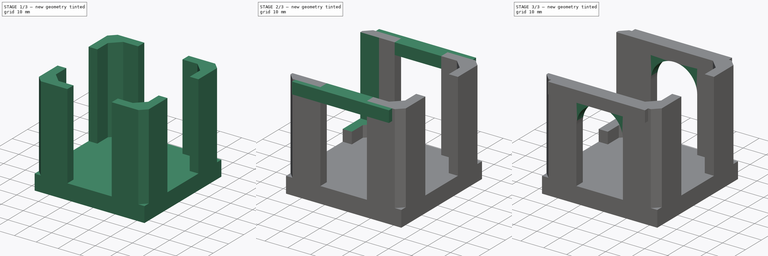
[diagram: build sequence overview — one tinted view per stage of 3, left to right]
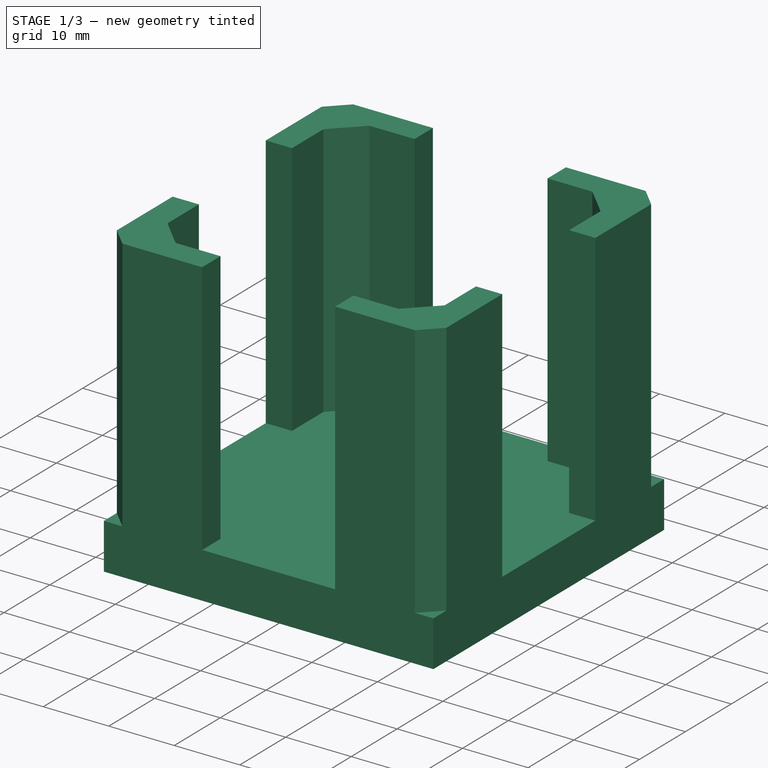
[diagram: stage 1 of 3 — iso view after this stage's code; geometry added in this stage tinted green]
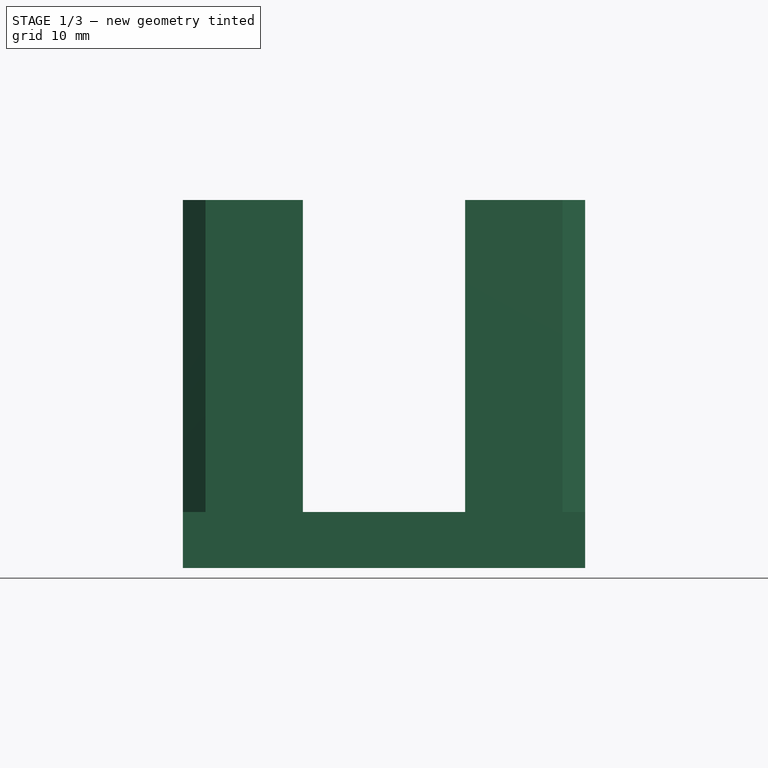
[diagram: stage 1 of 3 — front view after this stage's code; geometry added in this stage tinted green]
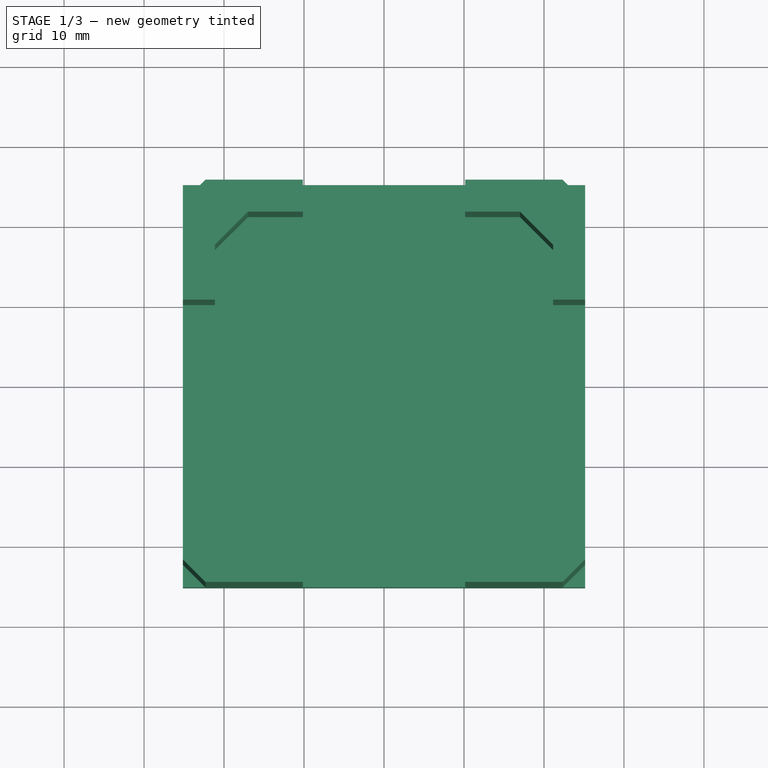
[diagram: stage 1 of 3 — top view after this stage's code; geometry added in this stage tinted green]
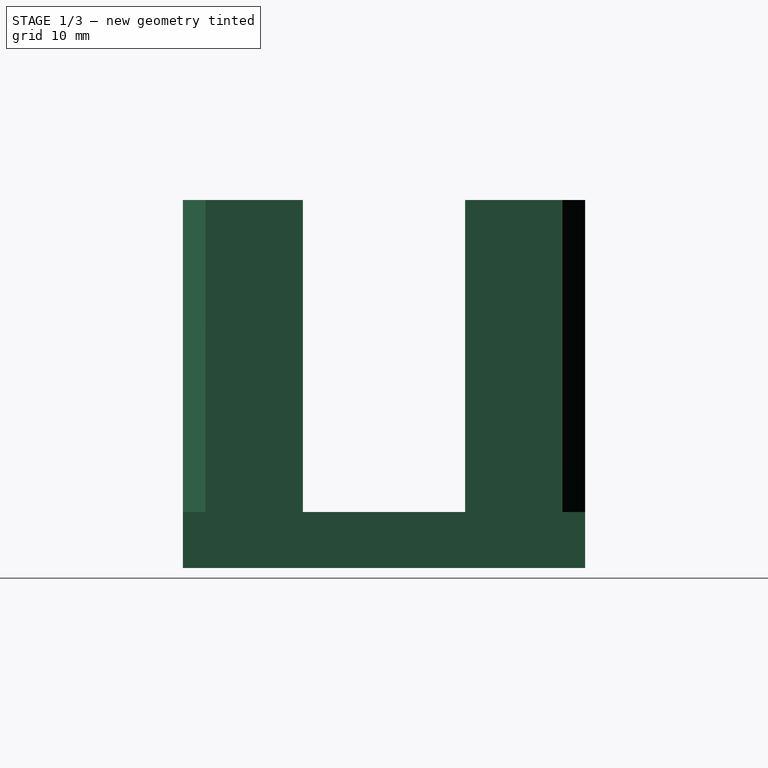
[diagram: stage 1 of 3 — right view after this stage's code; geometry added in this stage tinted green]
FCSTD DOCUMENT  (FreeCAD 0.18R4 (GitTag))
Label: ZStepperStand
License: All rights reserved
LicenseURL: http://en.wikipedia.org/wiki/All_rights_reserved
objects: Sketcher::SketchObject×6, PartDesign::Pad×5, Spreadsheet::Sheet×3, PartDesign::Pocket×1, PartDesign::Body×1
note: 19 computed .brp shape members not serialized (recipe doc carries the construction recipe); baked Part::Feature solids carry a one-line shape summary decoded from their .brp

FEATURE [Spreadsheet::Sheet] Spreadsheet  label="Nema17"
  cells = A1=BodyWidth; B1(BodyWidth)==42.3mm; A2=BodyLength; B2(BodyLength)==42.3mm; A3=BodyHeight34mm; B3(BodyHeight34mm)==34mm; A4=ScrewSeparation; B4(ScrewSeparation)==31mm; A5=DamperSupportHeight; B5(DamperSupportHeight)==2mm; A6=DamperSupportDiameter; B6(DamperSupportDiameter)==22mm; A7=ShaftLength; B7(ShaftLength)==24mm; A8=ShaftDiameter; B8(ShaftDiameter)==5mm; A9=PlugHeight; B9(PlugHeight)==12mm; A10=PlugWidth; B10(PlugWidth)==16mm; A11=PlugLength; B11(PlugLength)==6.5mm; A12=BodyInsideTaper; B12(BodyInsideTaper)==34mm
FEATURE [Spreadsheet::Sheet] Spreadsheet001  label="Nema17-Damper"
  cells = A1=DamperWingSpan; B1(DamperWingSpan)==53.8mm; A2=DamperScrewSeparation; B2(DamperScrewSeparation)==43.8mm; A3=DamperWingUnspan; B3(DamperWingUnspan)==32mm; A4=DamperShaftHoleRadius; B4(DamperShaftHoleRadius)==11mm; A5=DamperShaftHolderHoleRadius; B5(DamperShaftHolderHoleRadius)==8.5mm; A6=DamperAdjacentScrewSeparation; B6(DamperAdjacentScrewSeparation)==31mm; A7=DamperPlatesThickness; B7(DamperPlatesThickness)==1.6mm; A8=DamperPlatesSeparation; B8(DamperPlatesSeparation)==2.7mm; A9=DamperPlatesSeparationOuterDiameter; B9(DamperPlatesSeparationOuterDiameter)==29.5mm; A10=DamperNextHolderHeight; B10(DamperNextHolderHeight)==1mm; A11=DamperNextHolderRadius; B11(DamperNextHolderRadius)==11mm
FEATURE [Sketcher::SketchObject] Sketch
  MapMode = 5
  Support = -> [XY_Plane]
  expr: Constraints[11] = (Nema17.BodyWidth + 2 * ZStepperStand.Margin + 2 * ZStepperStand.WallThickness) / 2
  expr: Constraints[10] = (Nema17.BodyWidth + 2 * ZStepperStand.Margin + 2 * ZStepperStand.WallThickness) / 2
  expr: Constraints[9] = Nema17.BodyLength + 2 * ZStepperStand.Margin + 2 * ZStepperStand.WallThickness
  expr: Constraints[8] = Nema17.BodyWidth + 2 * ZStepperStand.Margin + 2 * ZStepperStand.WallThickness
  sketch-geometry (4):
    g0: LineSegment StartX=-25.15 StartY=25.15 StartZ=0 EndX=25.15 EndY=25.15 EndZ=0
    g1: LineSegment StartX=25.15 StartY=25.15 StartZ=0 EndX=25.15 EndY=-25.15 EndZ=0
    g2: LineSegment StartX=25.15 StartY=-25.15 StartZ=0 EndX=-25.15 EndY=-25.15 EndZ=0
    g3: LineSegment StartX=-25.15 StartY=-25.15 StartZ=0 EndX=-25.15 EndY=25.15 EndZ=0
  constraints (12):
    c: Coincident(g0,g1)
    c: Coincident(g1,g2)
    c: Coincident(g2,g3)
    c: Coincident(g3,g0)
    c: Horizontal(g0)
    c: Horizontal(g2)
    c: Vertical(g1)
    c: Vertical(g3)
    c: DistanceX(g0,g0) = 50.3
    c: DistanceY(g3,g3) = 50.3
    c: DistanceX(g-1,g0) = 25.15
    c: DistanceY(g-1,g0) = 25.15
FEATURE [Spreadsheet::Sheet] Spreadsheet002  label="ZStepperStand"
  cells = A1=WallThickness; B1(WallThickness)==4mm; A2=BaseThickness; B2(BaseThickness)==7mm; A3=Margin; B3(Margin)==0mm; A4=ColumnWidth; B4(ColumnWidth)==15mm; A5=LockStepHeight; B5(LockStepHeight)==5mm; A6=BaseWidth; B6(BaseWidth)==Nema17.BodyWidth + Margin * 2 + WallThickness * 2; A7=ColumnHeight; B7(ColumnHeight)==Nema17.BodyHeight34mm + ZStepperStand.StepperToSupportWood; A8=ZGuideSupportThickness; B8(ZGuideSupportThickness)==5mm; A9=StepperToSupportWood; B9(StepperToSupportWood)==5mm; A10=ColumnsGap; B10(ColumnsGap)==ZStepperStand.BaseWidth - ZStepperStand.ColumnWidth * 2
FEATURE [PartDesign::Pad] Pad  label="Base"
  Length = 7
  Length2 = 100
  Profile = -> Sketch
  Type = 0
  expr: Length = ZStepperStand.BaseThickness
FEATURE [Sketcher::SketchObject] Sketch001
  MapMode = 5
  Placement = pos=(0,0,7) rot=(0,0,1;0rad)
  Support = -> [Pad]
  expr: Constraints[119] = ZStepperStand.ColumnWidth
  expr: Constraints[101] = ZStepperStand.WallThickness
  expr: Constraints[23] = Nema17.BodyLength / 2
  expr: Constraints[112] = ZStepperStand.ColumnWidth
  expr: Constraints[117] = ZStepperStand.ColumnWidth
  expr: Constraints[118] = ZStepperStand.ColumnWidth
  expr: Constraints[100] = ZStepperStand.WallThickness
  expr: Constraints[91] = ZStepperStand.WallThickness
  expr: Constraints[116] = ZStepperStand.ColumnWidth
  expr: Constraints[5] = Nema17.BodyInsideTaper
  expr: Constraints[98] = ZStepperStand.Margin
  expr: Constraints[97] = ZStepperStand.Margin
  expr: Constraints[96] = ZStepperStand.Margin
  expr: Constraints[99] = ZStepperStand.Margin
  expr: Constraints[114] = ZStepperStand.ColumnWidth
  expr: Constraints[115] = ZStepperStand.ColumnWidth
  expr: Constraints[103] = ZStepperStand.WallThickness
  expr: Constraints[108] = ZStepperStand.Margin
  expr: Constraints[95] = ZStepperStand.Margin
  expr: Constraints[94] = ZStepperStand.Margin
  expr: Constraints[113] = ZStepperStand.ColumnWidth
  expr: Constraints[104] = ZStepperStand.WallThickness
  expr: Constraints[75] = ZStepperStand.WallThickness
  expr: Constraints[41] = ZStepperStand.Margin
  expr: Constraints[22] = Nema17.BodyWidth / 2
  expr: Constraints[43] = ZStepperStand.WallThickness
  expr: Constraints[102] = ZStepperStand.WallThickness
  expr: Constraints[107] = ZStepperStand.Margin
  expr: Constraints[40] = ZStepperStand.WallThickness
  expr: Constraints[59] = ZStepperStand.WallThickness
  expr: Constraints[106] = ZStepperStand.Margin
  expr: Constraints[6] = Nema17.BodyInsideTaper
  expr: Constraints[105] = ZStepperStand.WallThickness
  expr: Constraints[39] = ZStepperStand.Margin
  expr: Constraints[25] = ZStepperStand.Margin
  expr: Constraints[21] = Nema17.BodyLength
  expr: Constraints[4] = Nema17.BodyInsideTaper
  expr: Constraints[42] = ZStepperStand.WallThickness
  expr: Constraints[7] = Nema17.BodyInsideTaper
  sketch-geometry (40):
    g0: LineSegment [constr] StartX=-17 StartY=21.15 StartZ=0 EndX=17 EndY=21.15 EndZ=0
    g1: LineSegment [constr] StartX=21.15 StartY=17 StartZ=0 EndX=21.15 EndY=-17 EndZ=0
    g2: LineSegment [constr] StartX=-21.15 StartY=17 StartZ=0 EndX=-21.15 EndY=-17 EndZ=0
    g3: LineSegment [constr] StartX=-17 StartY=-21.15 StartZ=0 EndX=17 EndY=-21.15 EndZ=0
    g4: LineSegment [constr] StartX=-21.15 StartY=17 StartZ=0 EndX=-17 EndY=21.15 EndZ=0
    g5: LineSegment [constr] StartX=17 StartY=21.15 StartZ=0 EndX=21.15 EndY=17 EndZ=0
    g6: LineSegment [constr] StartX=21.15 StartY=-17 StartZ=0 EndX=17 EndY=-21.15 EndZ=0
    g7: LineSegment [constr] StartX=-17 StartY=-21.15 StartZ=0 EndX=-21.15 EndY=-17 EndZ=0
    g8: LineSegment StartX=17 StartY=21.15 StartZ=0 EndX=21.15 EndY=17 EndZ=0
    g9: LineSegment StartX=21.15 StartY=17 StartZ=0 EndX=21.15 EndY=10.15 EndZ=0
    g10: LineSegment StartX=21.15 StartY=10.15 StartZ=0 EndX=25.15 EndY=10.15 EndZ=0
    g11: LineSegment StartX=25.15 StartY=10.15 StartZ=0 EndX=25.15 EndY=22.3216 EndZ=0
    g12: LineSegment StartX=25.15 StartY=22.3216 StartZ=0 EndX=22.3216 EndY=25.15 EndZ=0
    g13: LineSegment StartX=22.3216 StartY=25.15 StartZ=0 EndX=10.15 EndY=25.15 EndZ=0
    g14: LineSegment StartX=10.15 StartY=25.15 StartZ=0 EndX=10.15 EndY=21.15 EndZ=0
    g15: LineSegment StartX=10.15 StartY=21.15 StartZ=0 EndX=17 EndY=21.15 EndZ=0
    g16: LineSegment StartX=-17 StartY=21.15 StartZ=0 EndX=-21.15 EndY=17 EndZ=0
    g17: LineSegment StartX=-21.15 StartY=17 StartZ=0 EndX=-21.15 EndY=10.15 EndZ=0
    g18: LineSegment StartX=-21.15 StartY=10.15 StartZ=0 EndX=-25.15 EndY=10.15 EndZ=0
    g19: LineSegment StartX=-25.15 StartY=10.15 StartZ=0 EndX=-25.15 EndY=22.3216 EndZ=0
    g20: LineSegment StartX=-25.15 StartY=22.3216 StartZ=0 EndX=-22.3216 EndY=25.15 EndZ=0
    g21: LineSegment StartX=-22.3216 StartY=25.15 StartZ=0 EndX=-10.15 EndY=25.15 EndZ=0
    g22: LineSegment StartX=-10.15 StartY=25.15 StartZ=0 EndX=-10.15 EndY=21.15 EndZ=0
    g23: LineSegment StartX=-10.15 StartY=21.15 StartZ=0 EndX=-17 EndY=21.15 EndZ=0
    g24: LineSegment StartX=17 StartY=-21.15 StartZ=0 EndX=21.15 EndY=-17 EndZ=0
    g25: LineSegment StartX=21.15 StartY=-17 StartZ=0 EndX=21.15 EndY=-10.15 EndZ=0
    g26: LineSegment StartX=21.15 StartY=-10.15 StartZ=0 EndX=25.15 EndY=-10.15 EndZ=0
    g27: LineSegment StartX=25.15 StartY=-10.15 StartZ=0 EndX=25.15 EndY=-22.3216 EndZ=0
    g28: LineSegment StartX=25.15 StartY=-22.3216 StartZ=0 EndX=22.3216 EndY=-25.15 EndZ=0
    g29: LineSegment StartX=22.3216 StartY=-25.15 StartZ=0 EndX=10.15 EndY=-25.15 EndZ=0
    g30: LineSegment StartX=10.15 StartY=-25.15 StartZ=0 EndX=10.15 EndY=-21.15 EndZ=0
    g31: LineSegment StartX=10.15 StartY=-21.15 StartZ=0 EndX=17 EndY=-21.15 EndZ=0
    g32: LineSegment StartX=-17 StartY=-21.15 StartZ=0 EndX=-21.15 EndY=-17 EndZ=0
    g33: LineSegment StartX=-21.15 StartY=-17 StartZ=0 EndX=-21.15 EndY=-10.15 EndZ=0
    g34: LineSegment StartX=-21.15 StartY=-10.15 StartZ=0 EndX=-25.15 EndY=-10.15 EndZ=0
    g35: LineSegment StartX=-25.15 StartY=-10.15 StartZ=0 EndX=-25.15 EndY=-22.3216 EndZ=0
    g36: LineSegment StartX=-25.15 StartY=-22.3216 StartZ=0 EndX=-22.3216 EndY=-25.15 EndZ=0
    g37: LineSegment StartX=-22.3216 StartY=-25.15 StartZ=0 EndX=-10.15 EndY=-25.15 EndZ=0
    g38: LineSegment StartX=-10.15 StartY=-25.15 StartZ=0 EndX=-10.15 EndY=-21.15 EndZ=0
    g39: LineSegment StartX=-10.15 StartY=-21.15 StartZ=0 EndX=-17 EndY=-21.15 EndZ=0
  constraints (120):
    c: Horizontal(g0)
    c: Vertical(g1)
    c: Vertical(g2)
    c: Horizontal(g3)
    c: DistanceY(g1,g1) = 34
    c: DistanceY(g2,g2) = 34
    c: DistanceX(g0,g0) = 34
    c: DistanceX(g3,g3) = 34
    c: Coincident(g4,g2)
    c: Coincident(g4,g0)
    c: Coincident(g5,g0)
    c: Coincident(g5,g1)
    c: Coincident(g6,g1)
    c: Coincident(g6,g3)
    c: Coincident(g7,g3)
    c: Coincident(g7,g2)
    c: Parallel(g5,g7)
    c: Parallel(g4,g6)
    c: Perpendicular(g4,g5)
    c: Angle(g0,g5) = 2.35619
    c: DistanceY(g1,g2) = 0
    c: DistanceX(g2,g1) = 42.3
    c: Distance(g-1,g1) = 21.15
    c: Distance(g-1,g0) = 21.15
    c: Parallel(g8,g5)
    c: Distance(g1,g8) = 0
    c: Coincident(g9,g8)
    c: Vertical(g9)
    c: Coincident(g10,g9)
    c: Horizontal(g10)
    c: Coincident(g11,g10)
    c: Vertical(g11)
    c: Coincident(g12,g11)
    c: Horizontal(g13)
    c: Coincident(g14,g13)
    c: Vertical(g14)
    c: Coincident(g15,g14)
    c: Coincident(g15,g8)
    c: Horizontal(g15)
    c: Distance(g14,g0) = 0
    c: DistanceY(g14,g14) = 4
    c: Distance(g9,g1) = 0
    c: DistanceX(g10,g10) = 4
    c: Distance(g12) = 4
    c: Coincident(g13,g12)
    c: Parallel(g12,g8)
    c: Coincident(g17,g16)
    c: Vertical(g17)
    c: Coincident(g18,g17)
    c: Horizontal(g18)
    c: Coincident(g19,g18)
    c: Vertical(g19)
    c: Coincident(g20,g19)
    c: Horizontal(g21)
    c: Coincident(g22,g21)
    c: Vertical(g22)
    c: Coincident(g23,g22)
    c: Coincident(g23,g16)
    c: Horizontal(g23)
    c: Distance(g20) = 4
    c: Coincident(g21,g20)
    c: Parallel(g20,g16)
    c: Coincident(g25,g24)
    c: Vertical(g25)
    c: Coincident(g26,g25)
    c: Horizontal(g26)
    c: Coincident(g27,g26)
    c: Vertical(g27)
    c: Coincident(g28,g27)
    c: Horizontal(g29)
    c: Coincident(g30,g29)
    c: Vertical(g30)
    c: Coincident(g31,g30)
    c: Coincident(g31,g24)
    c: Horizontal(g31)
    c: Distance(g28) = 4
    c: Coincident(g29,g28)
    c: Parallel(g28,g24)
    c: Coincident(g33,g32)
    c: Vertical(g33)
    c: Coincident(g34,g33)
    c: Horizontal(g34)
    c: Coincident(g35,g34)
    c: Vertical(g35)
    c: Coincident(g36,g35)
    c: Horizontal(g37)
    c: Coincident(g38,g37)
    c: Vertical(g38)
    c: Coincident(g39,g38)
    c: Coincident(g39,g32)
    c: Horizontal(g39)
    c: Distance(g36) = 4
    c: Coincident(g37,g36)
    c: Parallel(g36,g32)
    c: Distance(g22,g0) = 0
    c: Distance(g17,g2) = 0
    c: Distance(g33,g2) = 0
    c: Distance(g38,g3) = 0
    c: Distance(g30,g3) = 0
    c: Distance(g25,g1) = 0
    c: DistanceY(g22,g22) = 4
    c: DistanceY(g38,g38) = 4
    c: DistanceY(g30,g30) = 4
    c: DistanceX(g26,g26) = 4
    c: DistanceX(g34,g34) = 4
    c: DistanceX(g18,g18) = 4
    c: Distance(g2,g16) = 0
    c: Distance(g2,g32) = 0
    c: Distance(g1,g24) = 0
    c: Parallel(g24,g6)
    c: Parallel(g32,g7)
    c: Parallel(g16,g4)
    c: DistanceY(g18,g20) = 15
    c: DistanceY(g36,g34) = 15
    c: DistanceY(g28,g26) = 15
    c: DistanceY(g10,g12) = 15
    c: DistanceX(g13,g11) = 15
    c: DistanceX(g19,g21) = 15
    c: DistanceX(g35,g37) = 15
    c: DistanceX(g29,g27) = 15
FEATURE [PartDesign::Pad] Pad001  label="Columns"
  BaseFeature = -> Pad
  Length = 39
  Length2 = 100
  Profile = -> Sketch001
  Type = 0
  expr: Length = ZStepperStand.ColumnHeight
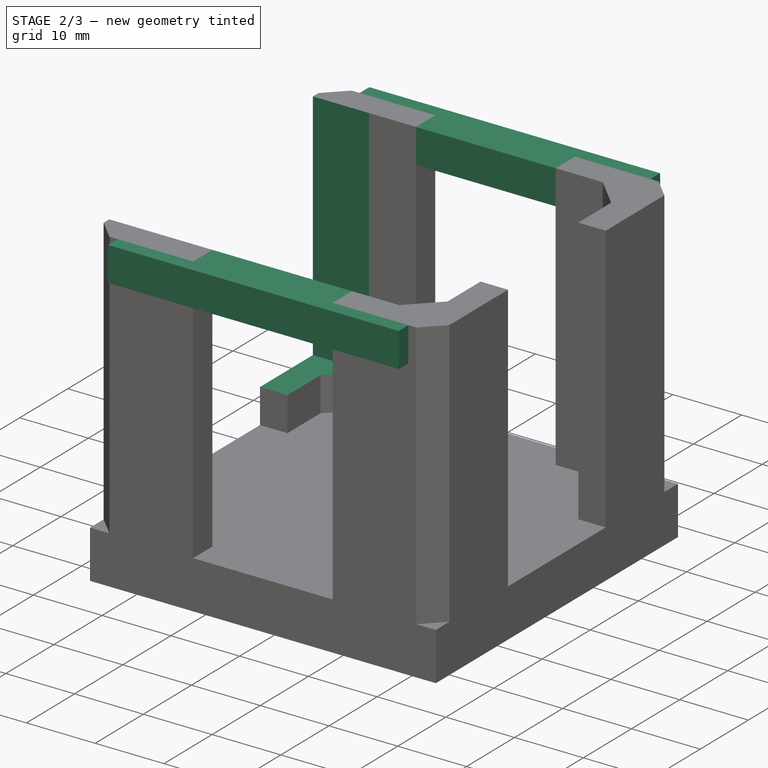
[diagram: stage 2 of 3 — iso view after this stage's code; geometry added in this stage tinted green]
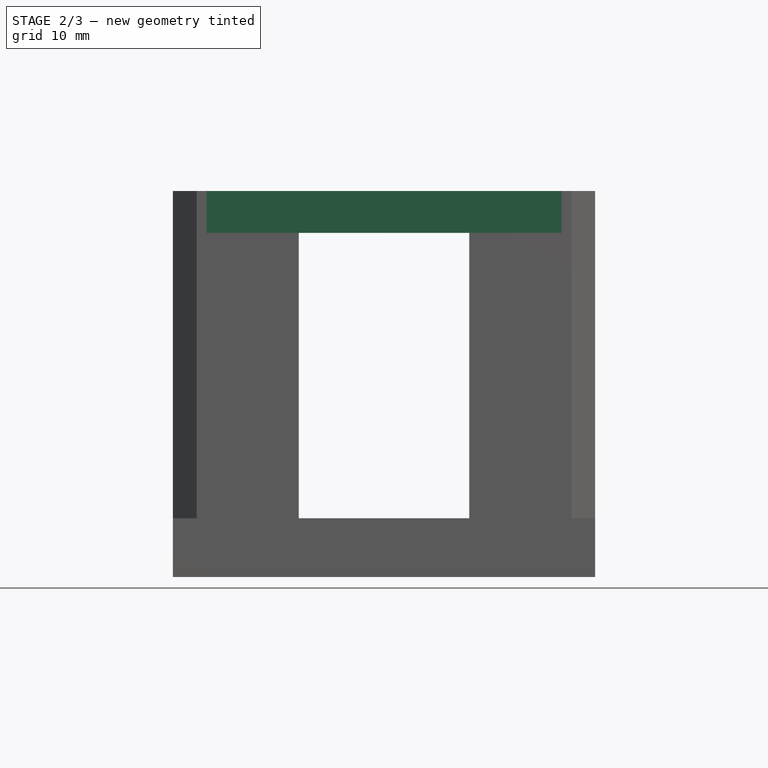
[diagram: stage 2 of 3 — front view after this stage's code; geometry added in this stage tinted green]
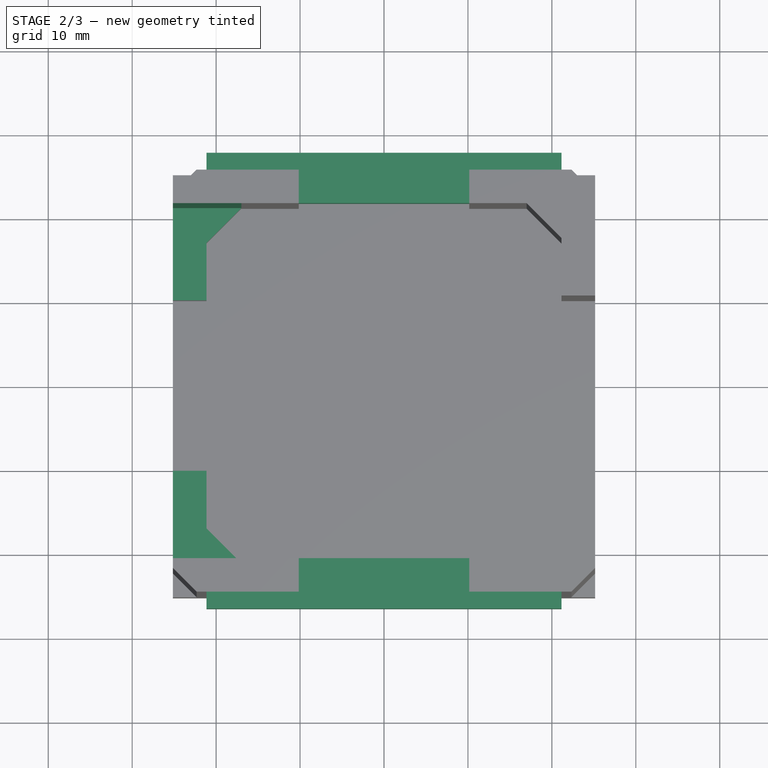
[diagram: stage 2 of 3 — top view after this stage's code; geometry added in this stage tinted green]
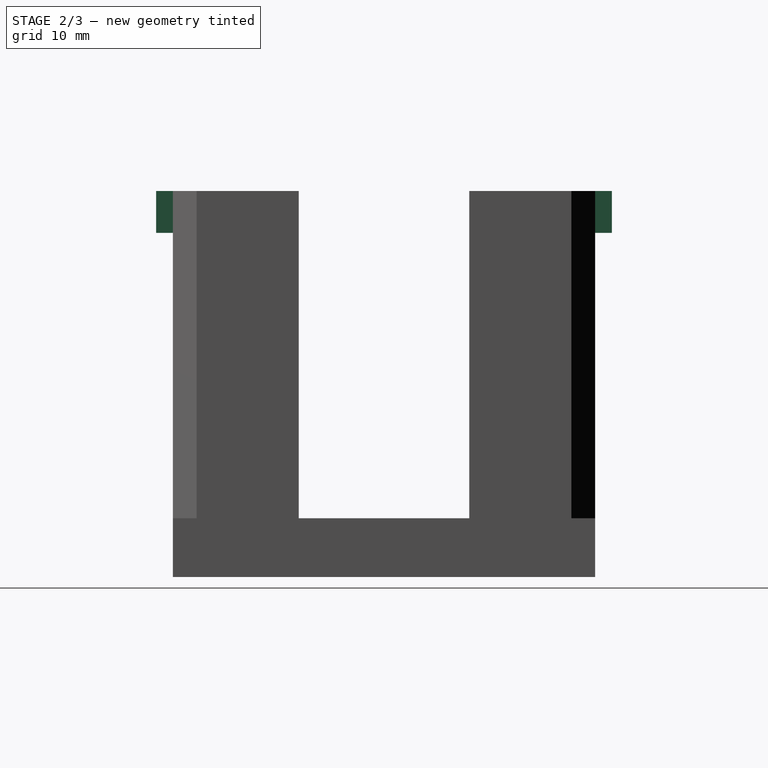
[diagram: stage 2 of 3 — right view after this stage's code; geometry added in this stage tinted green]
FEATURE [Sketcher::SketchObject] Sketch002
  MapMode = 5
  Placement = pos=(-25.15,0,0) rot=(0.57735,-0.57735,-0.57735;2.0944rad)
  Support = -> [Pad001]
  expr: Constraints[11] = (ZStepperStand.BaseWidth - ZStepperStand.WallThickness * 2) / 2
  expr: Constraints[10] = ZStepperStand.ColumnHeight - ZStepperStand.LockStepHeight
  expr: Constraints[9] = ZStepperStand.BaseThickness + ZStepperStand.LockStepHeight
  expr: Constraints[8] = ZStepperStand.BaseWidth - ZStepperStand.WallThickness * 2
  sketch-geometry (4):
    g0: LineSegment StartX=-21.15 StartY=46 StartZ=0 EndX=21.15 EndY=46 EndZ=0
    g1: LineSegment StartX=21.15 StartY=46 StartZ=0 EndX=21.15 EndY=12 EndZ=0
    g2: LineSegment StartX=21.15 StartY=12 StartZ=0 EndX=-21.15 EndY=12 EndZ=0
    g3: LineSegment StartX=-21.15 StartY=12 StartZ=0 EndX=-21.15 EndY=46 EndZ=0
  constraints (12):
    c: Coincident(g0,g1)
    c: Coincident(g1,g2)
    c: Coincident(g2,g3)
    c: Coincident(g3,g0)
    c: Horizontal(g0)
    c: Horizontal(g2)
    c: Vertical(g1)
    c: Vertical(g3)
    c: DistanceX(g2,g2) = 42.3
    c: DistanceY(g-1,g1) = 12
    c: DistanceY(g1,g1) = 34
    c: DistanceX(g-1,g1) = 21.15
FEATURE [PartDesign::Pocket] Pocket  label="BackHole"
  BaseFeature = -> Pad001
  Length = 0
  Length2 = 100
  Profile = -> Sketch002
  Type = 3
  UpToFace = -> Pad001 [Face18]
FEATURE [Sketcher::SketchObject] Sketch003
  MapMode = 5
  Placement = pos=(0,0,46) rot=(0,0,1;0rad)
  Support = -> [Pocket]
  expr: Constraints[23] = ZStepperStand.BaseWidth / 2 - ZStepperStand.WallThickness
  expr: Constraints[21] = ZStepperStand.BaseWidth / 2 - ZStepperStand.WallThickness
  expr: Constraints[20] = ZStepperStand.WallThickness * 1.5
  expr: Constraints[11] = ZStepperStand.BaseWidth / 2 - ZStepperStand.WallThickness
  expr: Constraints[10] = ZStepperStand.BaseWidth - ZStepperStand.WallThickness * 2
  expr: Constraints[22] = ZStepperStand.BaseWidth - ZStepperStand.WallThickness * 2
  expr: Constraints[9] = ZStepperStand.BaseWidth / 2 - ZStepperStand.WallThickness
  expr: Constraints[8] = ZStepperStand.WallThickness * 1.5
  sketch-geometry (8):
    g0: LineSegment StartX=-21.15 StartY=-21.15 StartZ=0 EndX=21.15 EndY=-21.15 EndZ=0
    g1: LineSegment StartX=21.15 StartY=-21.15 StartZ=0 EndX=21.15 EndY=-27.15 EndZ=0
    g2: LineSegment StartX=21.15 StartY=-27.15 StartZ=0 EndX=-21.15 EndY=-27.15 EndZ=0
    g3: LineSegment StartX=-21.15 StartY=-27.15 StartZ=0 EndX=-21.15 EndY=-21.15 EndZ=0
    g4: LineSegment StartX=21.15 StartY=27.15 StartZ=0 EndX=-21.15 EndY=27.15 EndZ=0
    g5: LineSegment StartX=-21.15 StartY=21.15 StartZ=0 EndX=21.15 EndY=21.15 EndZ=0
    g6: LineSegment StartX=21.15 StartY=21.15 StartZ=0 EndX=21.15 EndY=27.15 EndZ=0
    g7: LineSegment StartX=-21.15 StartY=27.15 StartZ=0 EndX=-21.15 EndY=21.15 EndZ=0
  constraints (24):
    c: Coincident(g0,g1)
    c: Coincident(g1,g2)
    c: Coincident(g2,g3)
    c: Coincident(g3,g0)
    c: Horizontal(g0)
    c: Horizontal(g2)
    c: Vertical(g1)
    c: Vertical(g3)
    c: DistanceY(g1,g1) = 6
    c: DistanceX(g0,g-1) = 21.15
    c: DistanceX(g0,g0) = 42.3
    c: DistanceY(g0,g-1) = 21.15
    c: Coincident(g5,g6)
    c: Coincident(g6,g4)
    c: Coincident(g4,g7)
    c: Coincident(g7,g5)
    c: Horizontal(g5)
    c: Horizontal(g4)
    c: Vertical(g6)
    c: Vertical(g7)
    c: DistanceY(g6,g6) = 6
    c: DistanceY(g-1,g5) = 21.15
    c: DistanceX(g4,g4) = 42.3
    c: DistanceX(g-1,g4) = 21.15
FEATURE [PartDesign::Pad] Pad002  label="ZGuideSupport"
  BaseFeature = -> Pocket
  Length = 5
  Length2 = 100
  Profile = -> Sketch003
  Reversed = true
  Type = 0
  expr: Length = ZStepperStand.ZGuideSupportThickness
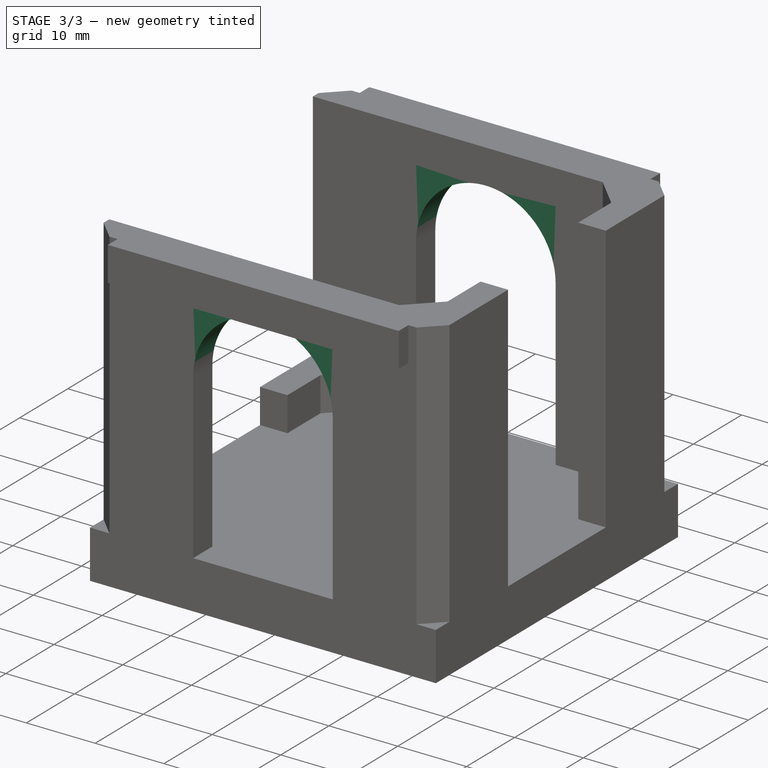
[diagram: stage 3 of 3 — iso view after this stage's code; geometry added in this stage tinted green]
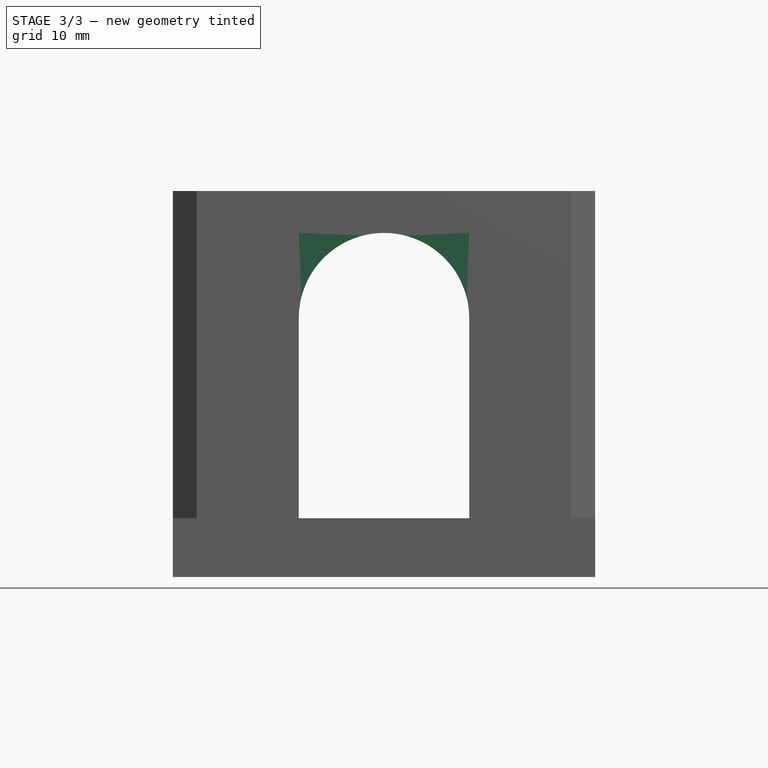
[diagram: stage 3 of 3 — front view after this stage's code; geometry added in this stage tinted green]
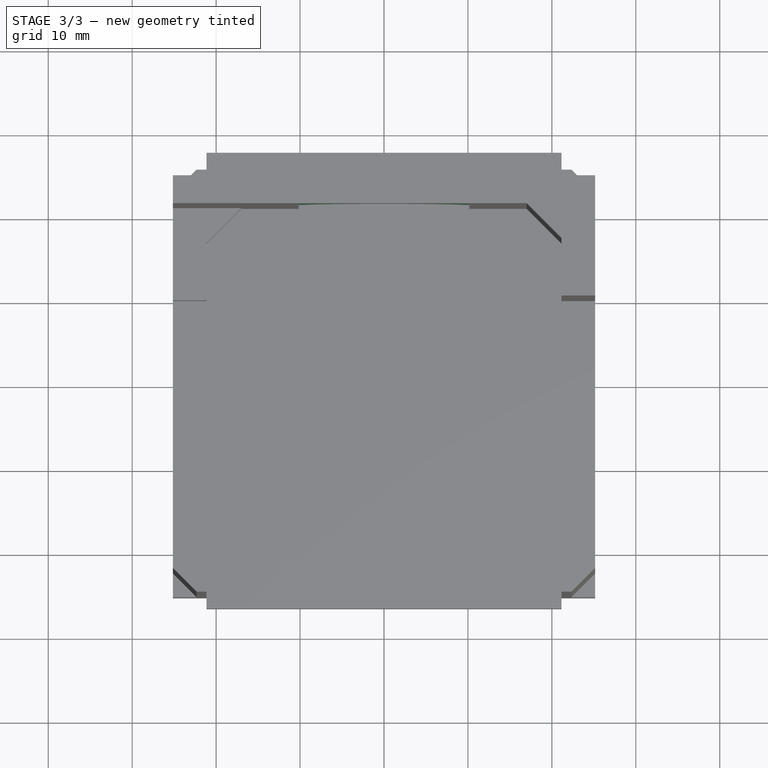
[diagram: stage 3 of 3 — top view after this stage's code; geometry added in this stage tinted green]
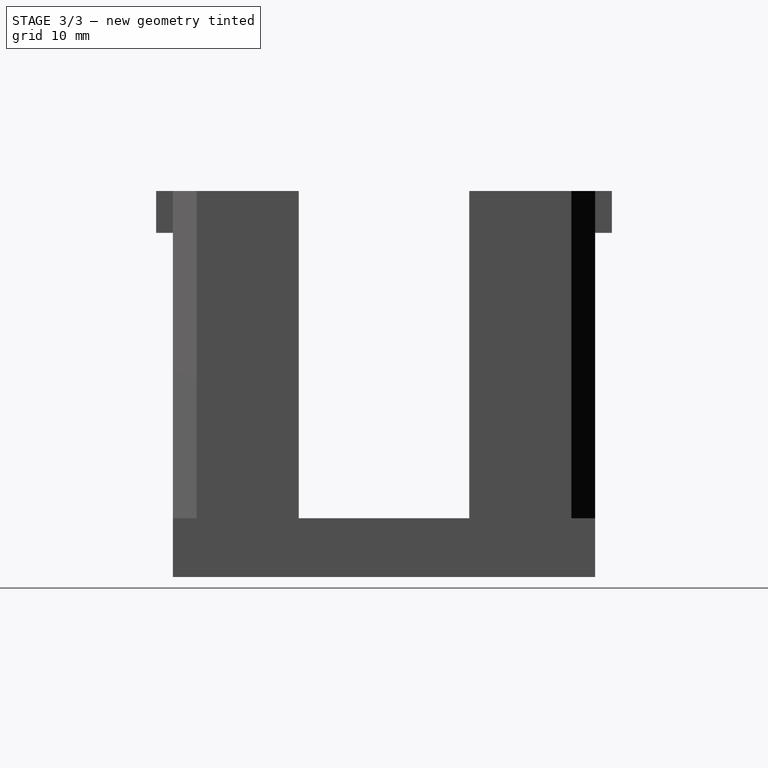
[diagram: stage 3 of 3 — right view after this stage's code; geometry added in this stage tinted green]
FEATURE [Sketcher::SketchObject] Sketch004
  MapMode = 5
  Placement = pos=(0,-25.15,0) rot=(1,0,0;1.5708rad)
  Support = -> [Pad002]
  expr: Constraints[12] = ZStepperStand.ColumnsGap / 2 + 0.1mm
  expr: Constraints[2] = ZStepperStand.ColumnsGap
  expr: Constraints[3] = ZStepperStand.BaseThickness + ZStepperStand.ColumnHeight - ZStepperStand.ZGuideSupportThickness - ZStepperStand.ColumnsGap / 2
  sketch-geometry (4):
    g0: ArcOfCircle CenterX=0 CenterY=30.85 CenterZ=0 NormalX=0 NormalY=0 NormalZ=1 AngleXU=0 Radius=10.15 StartAngle=0 EndAngle=3.14159
    g1: LineSegment StartX=10.15 StartY=30.85 StartZ=0 EndX=10.15 EndY=41.1 EndZ=0
    g2: LineSegment StartX=10.15 StartY=41.1 StartZ=0 EndX=-10.15 EndY=41.1 EndZ=0
    g3: LineSegment StartX=-10.15 StartY=41.1 StartZ=0 EndX=-10.15 EndY=30.85 EndZ=0
  constraints (13):
    c: PointOnObject(g0,g-2)
    c: Horizontal(g0,g0)
    c: DistanceX(g0,g0) = 20.3
    c: DistanceY(g-1,g0) = 30.85
    c: Horizontal(g0,g0)
    c: Coincident(g1,g0)
    c: Vertical(g1)
    c: Coincident(g2,g1)
    c: Horizontal(g2)
    c: Coincident(g3,g2)
    c: Coincident(g3,g0)
    c: Vertical(g3)
    c: DistanceY(g0,g1) = 10.25
FEATURE [PartDesign::Pad] Pad003
  BaseFeature = -> Pad002
  Length = 4
  Length2 = 100
  Profile = -> Sketch004
  Reversed = true
  Type = 0
  expr: Length = ZStepperStand.WallThickness
FEATURE [Sketcher::SketchObject] Sketch005
  MapMode = 5
  Placement = pos=(0,25.15,0) rot=(0,0.707107,0.707107;3.14159rad)
  Support = -> [Pad003]
  expr: Constraints[2] = ZStepperStand.ColumnsGap
  expr: Constraints[12] = ZStepperStand.ColumnsGap / 2 + 0.1mm
  expr: Constraints[1] = ZStepperStand.BaseThickness + ZStepperStand.ColumnHeight - ZStepperStand.ZGuideSupportThickness - ZStepperStand.ColumnsGap / 2
  sketch-geometry (4):
    g0: ArcOfCircle CenterX=0 CenterY=30.85 CenterZ=0 NormalX=0 NormalY=0 NormalZ=1 AngleXU=0 Radius=10.15 StartAngle=0 EndAngle=3.14159
    g1: LineSegment StartX=10.15 StartY=30.85 StartZ=0 EndX=10.15 EndY=41.1 EndZ=0
    g2: LineSegment StartX=-10.15 StartY=30.85 StartZ=0 EndX=-10.15 EndY=41.1 EndZ=0
    g3: LineSegment StartX=-10.15 StartY=41.1 StartZ=0 EndX=10.15 EndY=41.1 EndZ=0
  constraints (13):
    c: PointOnObject(g0,g-2)
    c: DistanceY(g-1,g0) = 30.85
    c: DistanceX(g0,g0) = 20.3
    c: Horizontal(g0,g0)
    c: Horizontal(g0,g0)
    c: Coincident(g1,g0)
    c: Vertical(g1)
    c: Coincident(g2,g0)
    c: Vertical(g2)
    c: Coincident(g3,g2)
    c: Coincident(g3,g1)
    c: Horizontal(g3)
    c: DistanceY(g0,g1) = 10.25
FEATURE [PartDesign::Pad] Pad004
  BaseFeature = -> Pad003
  Length = 4
  Length2 = 100
  Profile = -> Sketch005
  Reversed = true
  Type = 0
  expr: Length = ZStepperStand.WallThickness
FEATURE [PartDesign::Body] Body  label="Z-Stepper Stand"
  Group = -> [Sketch,Pad,Sketch001,Pad001,Sketch002,Pocket,Sketch003,Pad002,Sketch004,Pad003,Sketch005,Pad004]
  Origin = -> Origin
  Tip = -> Pad004
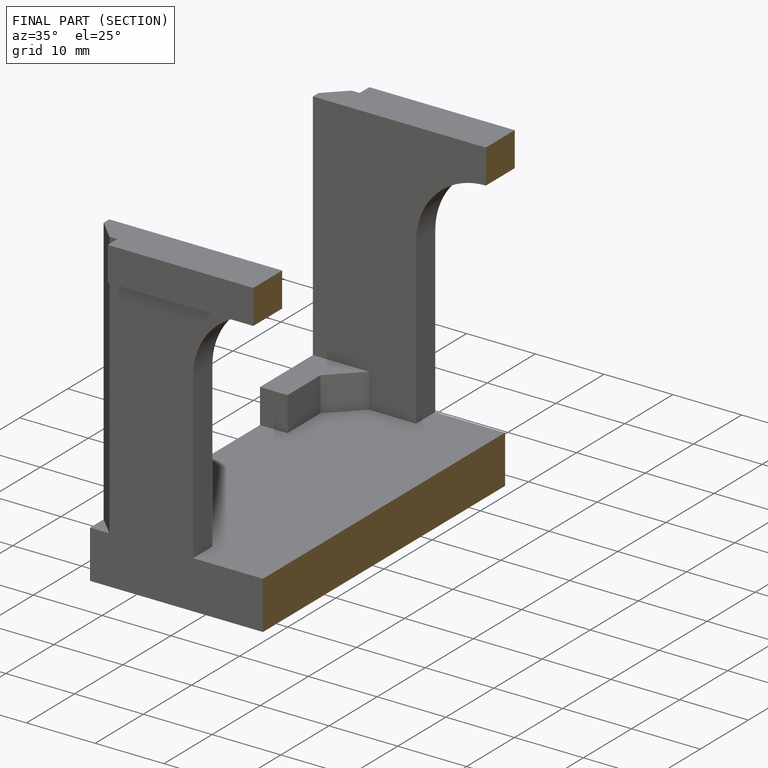
[diagram: finished part — half-section view (interior)]
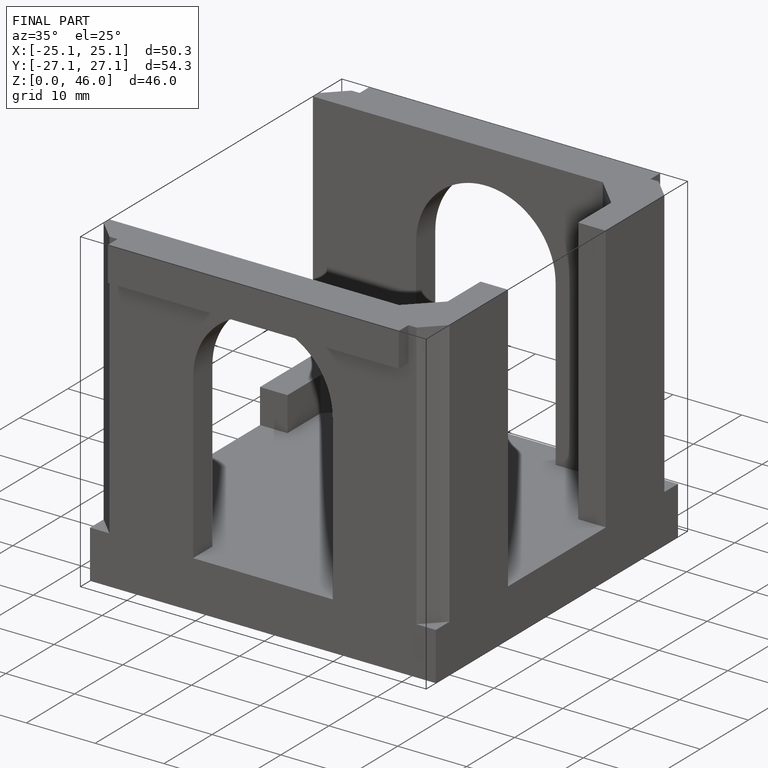
[diagram: finished part — iso view with bounding-box wireframe]
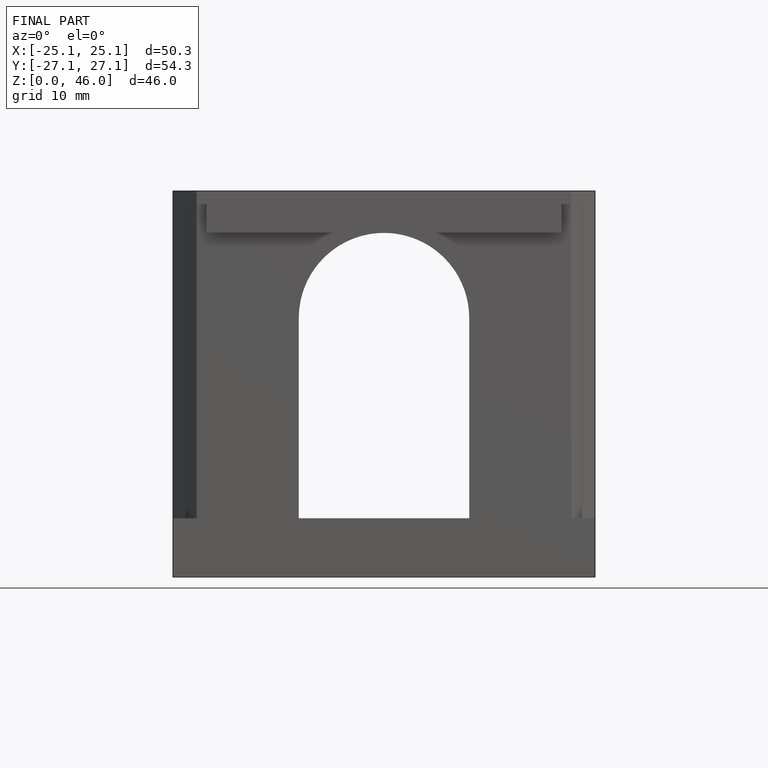
[diagram: finished part — front view with bounding-box wireframe]
